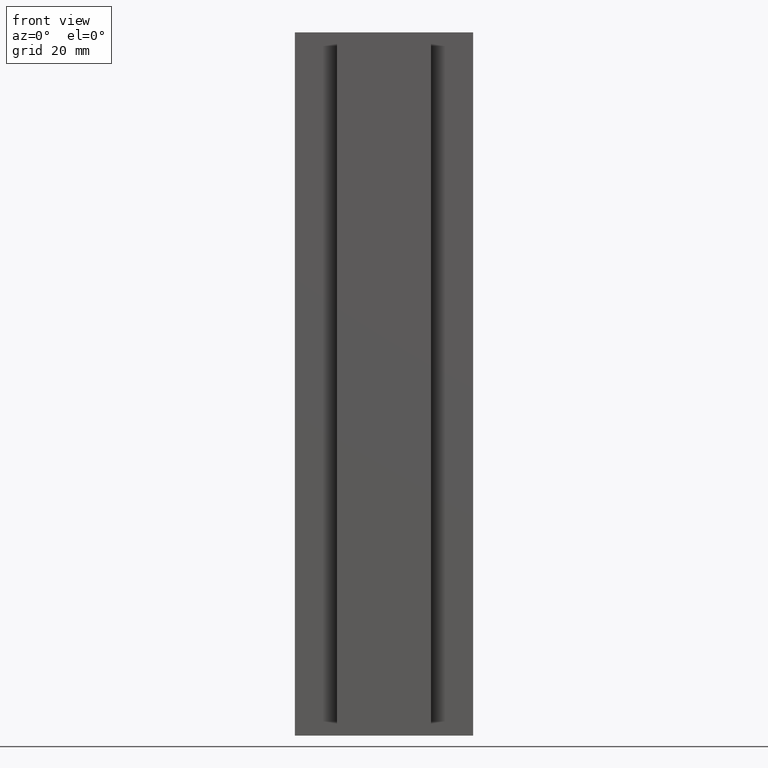
[diagram: clean part render]
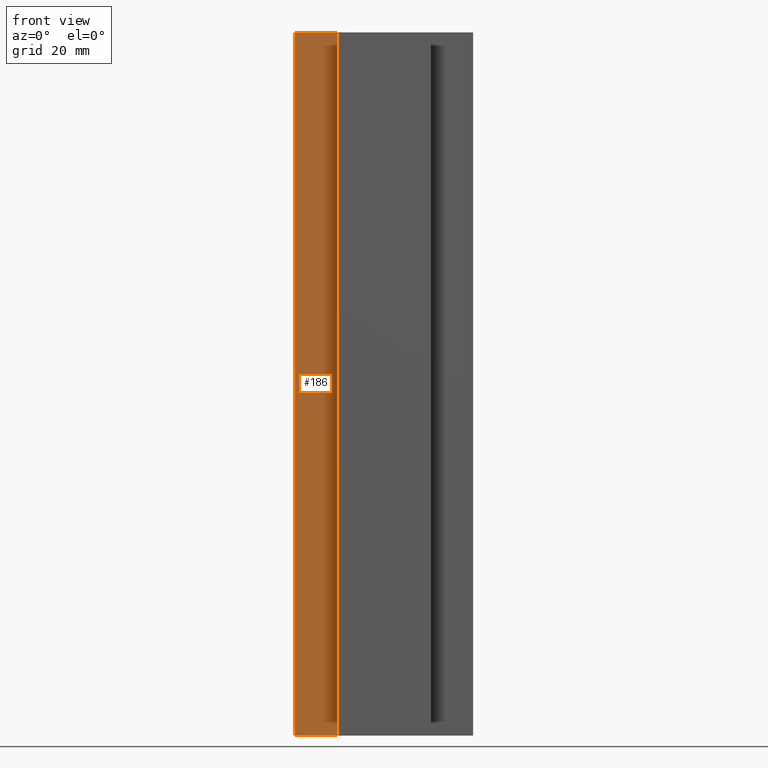
[diagram: same view with one face highlighted and labeled with its STEP entity id]
A machine part, front view. The second image highlights one B-rep face of the part: STEP entity #186.
In plain terms, the highlighted planar face has unit normal (-0, -1, 0).
Its self-contained STEP definition (entity closure, byte-faithful):
#20=FACE_OUTER_BOUND('',#30,.T.);
#30=EDGE_LOOP('',(#144,#145,#146,#147));
#41=LINE('',#285,#65);
#50=LINE('',#302,#74);
#51=LINE('',#305,#75);
#52=LINE('',#306,#76);
#65=VECTOR('',#234,10.);
#74=VECTOR('',#249,10.);
#75=VECTOR('',#252,10.);
#76=VECTOR('',#253,10.);
#89=VERTEX_POINT('',#282);
#90=VERTEX_POINT('',#284);
#95=VERTEX_POINT('',#300);
#96=VERTEX_POINT('',#304);
#105=EDGE_CURVE('',#90,#89,#41,.T.);
#114=EDGE_CURVE('',#95,#89,#50,.T.);
#115=EDGE_CURVE('',#95,#96,#51,.T.);
#116=EDGE_CURVE('',#96,#90,#52,.T.);
#144=ORIENTED_EDGE('',*,*,#115,.T.);
#145=ORIENTED_EDGE('',*,*,#116,.T.);
#146=ORIENTED_EDGE('',*,*,#105,.T.);
#147=ORIENTED_EDGE('',*,*,#114,.F.);
#176=PLANE('',#219);
#186=ADVANCED_FACE('',(#20),#176,.T.);
#219=AXIS2_PLACEMENT_3D('',#303,#250,#251);
#234=DIRECTION('',(1.,-1.2335811384724E-16,0.));
#249=DIRECTION('',(0.,0.,-1.));
#250=DIRECTION('center_axis',(-1.2335811384724E-16,-1.,0.));
#251=DIRECTION('ref_axis',(0.,0.,-1.));
#252=DIRECTION('',(-1.,1.2335811384724E-16,0.));
#253=DIRECTION('',(0.,0.,-1.));
#282=CARTESIAN_POINT('',(-10.,10.,-75.));
#284=CARTESIAN_POINT('',(-19.,10.,-75.));
#285=CARTESIAN_POINT('',(-10.,10.,-75.));
#300=CARTESIAN_POINT('',(-10.,10.,75.));
#302=CARTESIAN_POINT('',(-10.,10.,0.));
#303=CARTESIAN_POINT('Origin',(-10.,10.,0.));
#304=CARTESIAN_POINT('',(-19.,10.,75.));
#305=CARTESIAN_POINT('',(-10.,10.,75.));
#306=CARTESIAN_POINT('',(-19.,10.,0.));